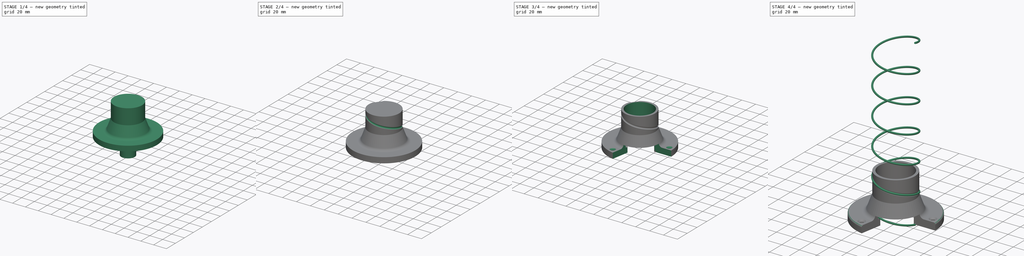
[diagram: build sequence overview — one tinted view per stage of 4, left to right]
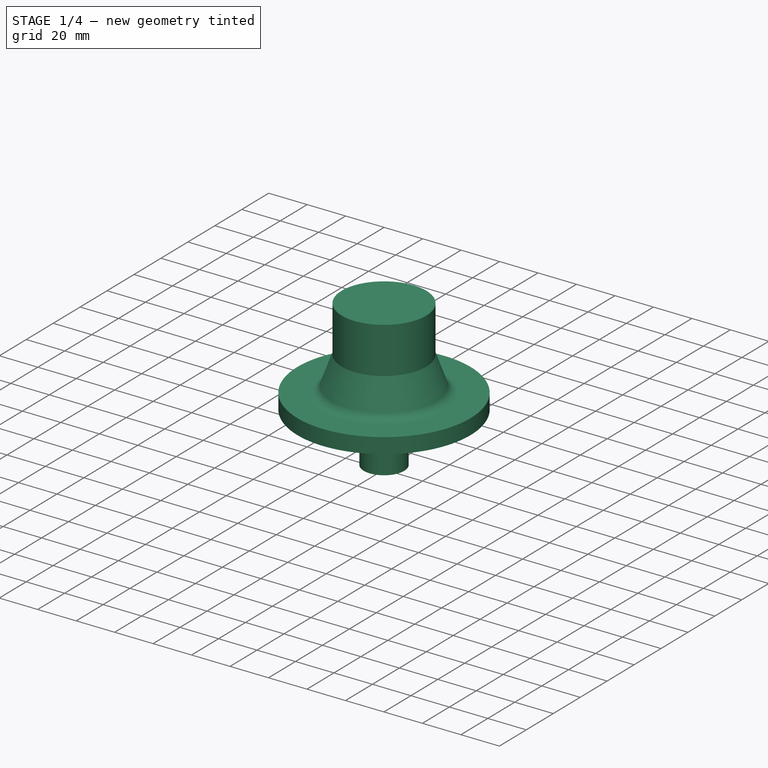
[diagram: stage 1 of 4 — iso view after this stage's code; geometry added in this stage tinted green]
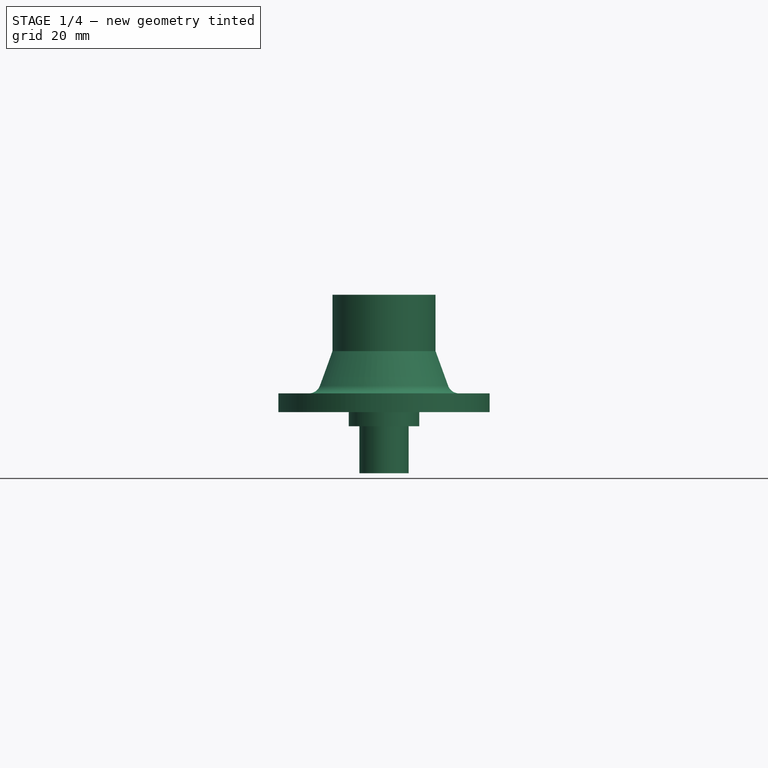
[diagram: stage 1 of 4 — front view after this stage's code; geometry added in this stage tinted green]
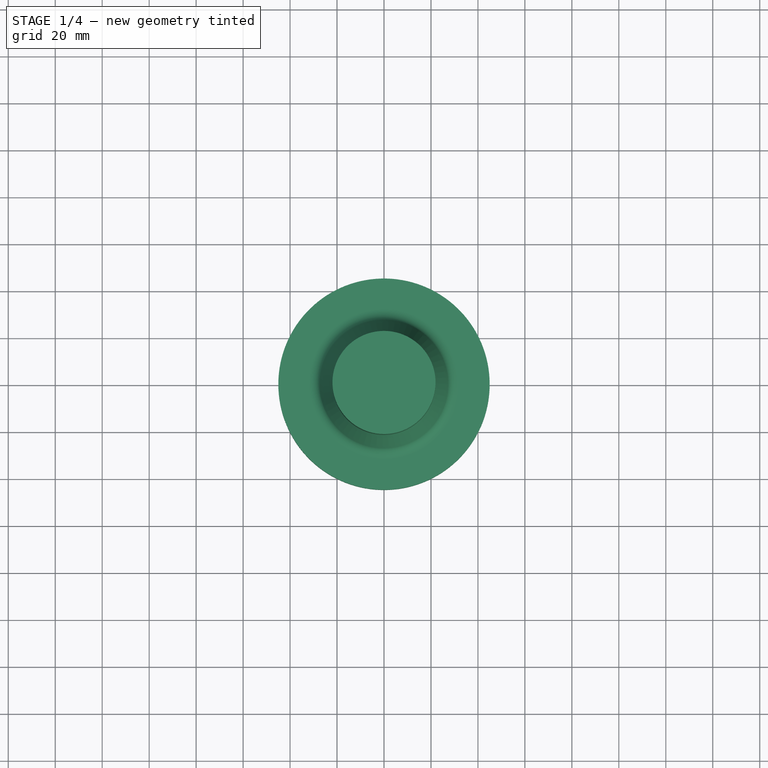
[diagram: stage 1 of 4 — top view after this stage's code; geometry added in this stage tinted green]
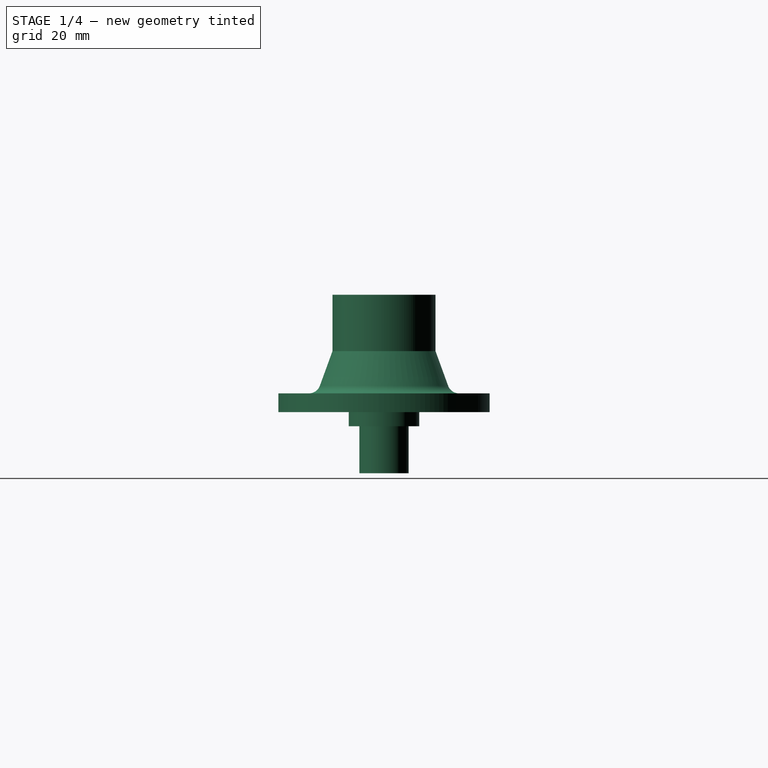
[diagram: stage 1 of 4 — right view after this stage's code; geometry added in this stage tinted green]
FCSTD DOCUMENT  (FreeCAD 0.18R16145 (Git))
Label: orange_top_ku_band_KU1201B_and_helix_bracket
License: All rights reserved
LicenseURL: http://en.wikipedia.org/wiki/All_rights_reserved
objects: Sketcher::SketchObject×7, PartDesign::Body×3, PartDesign::Revolution×2, PartDesign::ShapeBinder×2, PartDesign::SubtractivePipe×2, PartDesign::Pocket×2, PartDesign::Boolean×1, Part::Helix×1, PartDesign::FeatureBase×1, PartDesign::Hole×1, PartDesign::Fillet×1, App::Part×1
note: 30 computed .brp shape members not serialized (recipe doc carries the construction recipe); baked Part::Feature solids carry a one-line shape summary decoded from their .brp

FEATURE [Sketcher::SketchObject] Sketch
  MapMode = 5
  Placement = pos=(0,0,0) rot=(0.57735,0.57735,0.57735;2.0944rad)
  Support = -> [YZ_Plane001]
  sketch-geometry (10):
    g0: LineSegment StartX=0 StartY=-26 StartZ=0 EndX=10.5 EndY=-26 EndZ=0
    g1: LineSegment StartX=10.5 StartY=-26 StartZ=0 EndX=10.5 EndY=-6 EndZ=0
    g2: LineSegment StartX=10.5 StartY=-6 StartZ=0 EndX=15 EndY=-6 EndZ=0
    g3: LineSegment StartX=15 StartY=-6 StartZ=0 EndX=15 EndY=0 EndZ=0
    g4: LineSegment StartX=15 StartY=0 StartZ=0 EndX=20.5 EndY=0 EndZ=0
    g5: LineSegment StartX=20.5 StartY=0 StartZ=0 EndX=20.5 EndY=14 EndZ=0
    g6: LineSegment StartX=20.5 StartY=14 StartZ=0 EndX=18.5 EndY=14 EndZ=0
    g7: LineSegment StartX=18.5 StartY=14 StartZ=0 EndX=18.5 EndY=12 EndZ=0
    g8: LineSegment StartX=18.5 StartY=12 StartZ=0 EndX=0 EndY=12 EndZ=0
    g9: LineSegment StartX=0 StartY=12 StartZ=0 EndX=0 EndY=-26 EndZ=0
  constraints (30):
    c: PointOnObject(g0,g-2)
    c: Horizontal(g0)
    c: Coincident(g0,g1)
    c: Vertical(g1)
    c: Coincident(g1,g2)
    c: Horizontal(g2)
    c: Coincident(g2,g3)
    c: Vertical(g3)
    c: Coincident(g3,g4)
    c: Horizontal(g4)
    c: Coincident(g4,g5)
    c: Vertical(g5)
    c: Coincident(g5,g6)
    c: Horizontal(g6)
    c: Coincident(g6,g7)
    c: Vertical(g7)
    c: Coincident(g7,g8)
    c: PointOnObject(g9,g-2)
    c: Coincident(g9,g0)
    c: DistanceX(g0,g0) = 10.5
    c: DistanceX(g0,g2) = 15
    c: DistanceX(g0,g4) = 20.5
    c: DistanceY(g1,g1) = 20
    c: DistanceY(g5,g5) = 14
    c: DistanceY(g3,g3) = 6
    c: Horizontal(g8)
    c: DistanceX(g6,g6) = 2
    c: DistanceY(g7,g7) = 2
    c: Coincident(g9,g8)
    c: Horizontal(g3,g-1)
FEATURE [PartDesign::Revolution] Revolution
  Angle = 360
  Axis = (-2e-16,3e-16,1)
  Base = (0,0,0)
  Placement = pos=(0,0,0) rot=(0.57735,0.57735,0.57735;2.0944rad)
  Profile = -> Sketch
  ReferenceAxis = -> Sketch [V_Axis]
  Reversed = true
FEATURE [PartDesign::Body] Body
  Group = -> [Sketch,Revolution]
  Origin = -> Origin001
  Tip = -> Revolution
FEATURE [Sketcher::SketchObject] Sketch002
  MapMode = 5
  Placement = pos=(0,0,0) rot=(1,0,0;1.5708rad)
  Support = -> [XZ_Plane002]
  sketch-geometry (8):
    g0: LineSegment StartX=0 StartY=0 StartZ=0 EndX=45 EndY=0 EndZ=0
    g1: LineSegment StartX=21.95 StartY=50 StartZ=0 EndX=0 EndY=50 EndZ=0
    g2: LineSegment StartX=0 StartY=50 StartZ=0 EndX=0 EndY=0 EndZ=0
    g3: LineSegment StartX=21.95 StartY=50 StartZ=0 EndX=21.95 EndY=25.9931 EndZ=0
    g4: LineSegment StartX=45 StartY=0 StartZ=0 EndX=45 EndY=8 EndZ=0
    g5: LineSegment StartX=21.95 StartY=25.9931 StartZ=0 EndX=27.3015 EndY=11.2899 EndZ=0
    g6: LineSegment StartX=32 StartY=8 StartZ=0 EndX=45 EndY=8 EndZ=0
    g7: ArcOfCircle CenterX=32 CenterY=13 CenterZ=0 NormalX=0 NormalY=0 NormalZ=1 AngleXU=0 Radius=5 StartAngle=3.49066 EndAngle=4.71239
  constraints (22):
    c: Coincident(g1,g2)
    c: Coincident(g2,g0)
    c: Horizontal(g0)
    c: Horizontal(g1)
    c: Vertical(g2)
    c: Coincident(g0,g-1)
    c: DistanceX(g1,g1) = 21.95
    c: Coincident(g1,g3)
    c: Vertical(g3)
    c: DistanceX(g0,g0) = 45
    c: Coincident(g4,g0)
    c: Vertical(g4)
    c: Coincident(g3,g5)
    c: Coincident(g6,g4)
    c: Horizontal(g6)
    c: DistanceY(g4,g4) = 8
    c: Tangent(g6,g7) = -1.5708
    c: Tangent(g5,g7) = -1.5708
    c: DistanceX(g6,g6) = 13
    c: Radius(g7) = 5
    c: Angle(g5,g3) = 2.79253
    c: DistanceY(g2,g2) = 50
FEATURE [PartDesign::Revolution] Revolution002
  Angle = 360
  Axis = (0,2e-16,1)
  Base = (0,0,0)
  Placement = pos=(0,0,0) rot=(1,0,0;1.5708rad)
  Profile = -> Sketch002
  ReferenceAxis = -> Sketch002 [V_Axis]
  Reversed = true
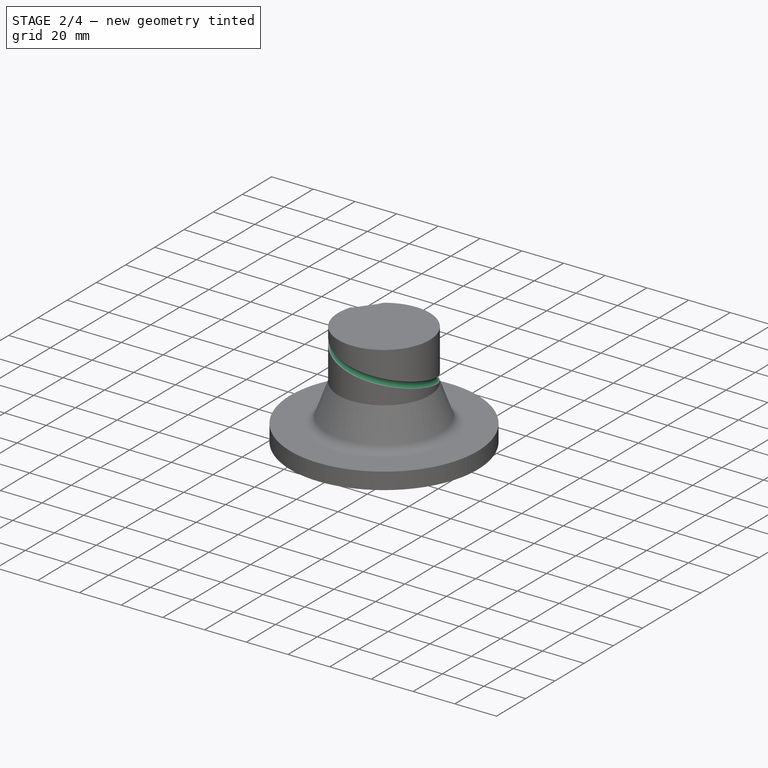
[diagram: stage 2 of 4 — iso view after this stage's code; geometry added in this stage tinted green]
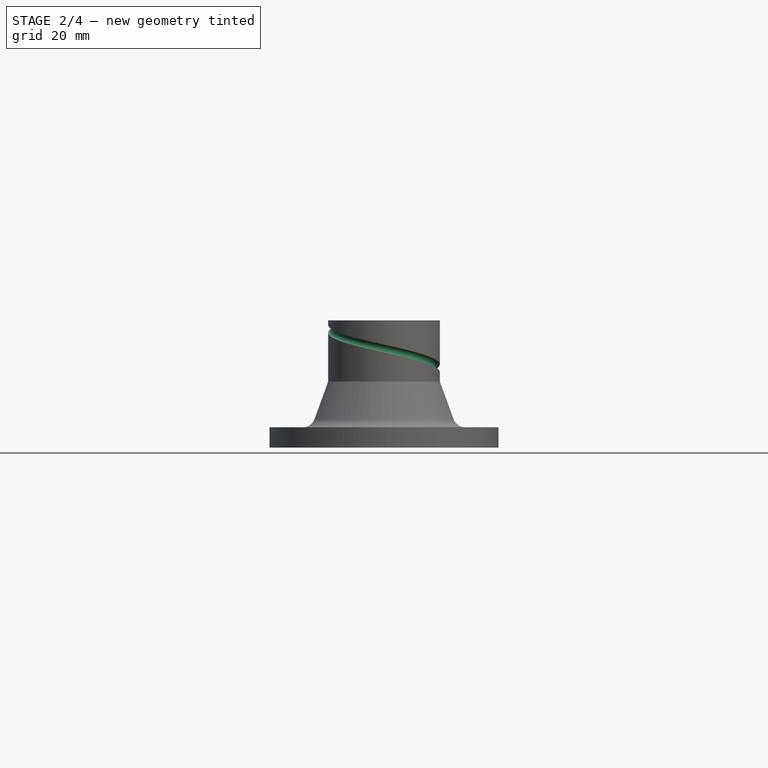
[diagram: stage 2 of 4 — front view after this stage's code; geometry added in this stage tinted green]
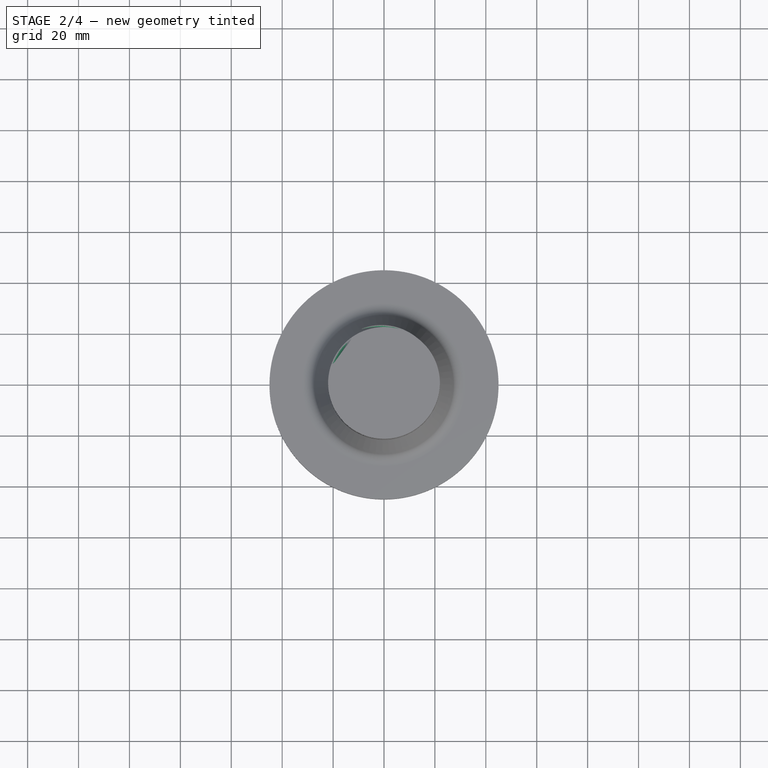
[diagram: stage 2 of 4 — top view after this stage's code; geometry added in this stage tinted green]
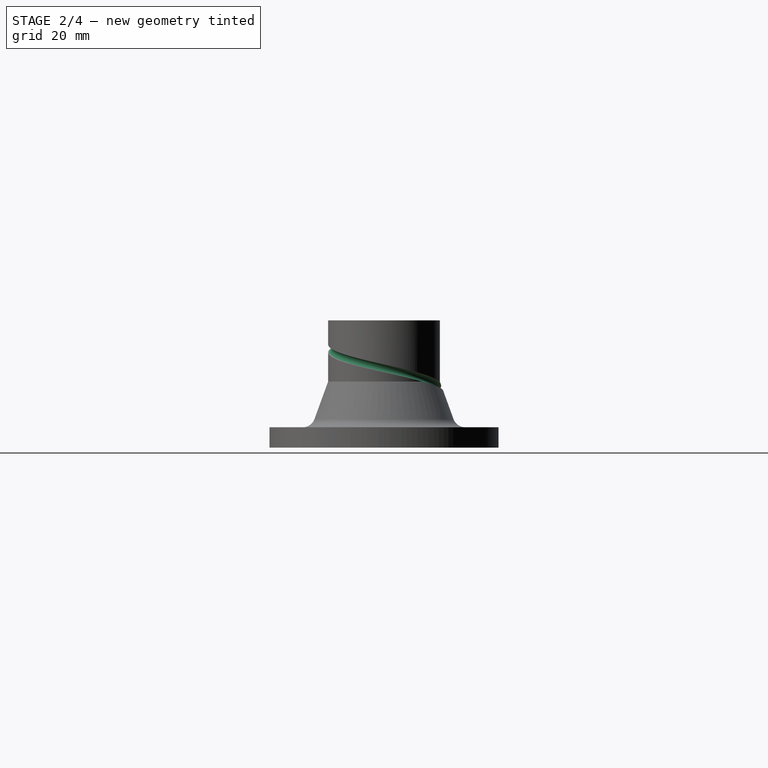
[diagram: stage 2 of 4 — right view after this stage's code; geometry added in this stage tinted green]
FEATURE [PartDesign::Boolean] Boolean
  BaseFeature = -> Revolution002
  Group = -> [Body]
  Type = 1
FEATURE [Part::Helix] Helix001
  Angle = 0
  AttacherType = Attacher::AttachEngine3D
  Height = 187.19
  LocalCoord = 1
  Pitch = 31.2
  Radius = 22
  Style = 1
FEATURE [PartDesign::ShapeBinder] ShapeBinder
  Support = -> [Helix001]
  TraceSupport = false
FEATURE [Sketcher::SketchObject] Sketch003
  ExternalGeometry = -> [ShapeBinder]
  MapMode = 5
  Placement = pos=(0,0,0) rot=(1,0,0;1.5708rad)
  Support = -> [XZ_Plane002]
  sketch-geometry (1):
    g0: Circle CenterX=22 CenterY=0 CenterZ=0 NormalX=0 NormalY=0 NormalZ=1 AngleXU=0 Radius=1.5
  constraints (2):
    c: Coincident(g0,g-3)
    c: Diameter(g0) = 3
FEATURE [PartDesign::SubtractivePipe] SubtractivePipe
  AuxilleryCurvelinear = true
  AuxillerySpineTangent = false
  BaseFeature = -> Boolean
  Binormal = (0,0,0)
  Mode = 0
  Profile = -> Sketch003
  Spine = -> ShapeBinder [Edge1,Edge2,Edge3,Edge4,Edge5,Edge6]
  SpineTangent = false
  Transformation = 0
  Transition = 0
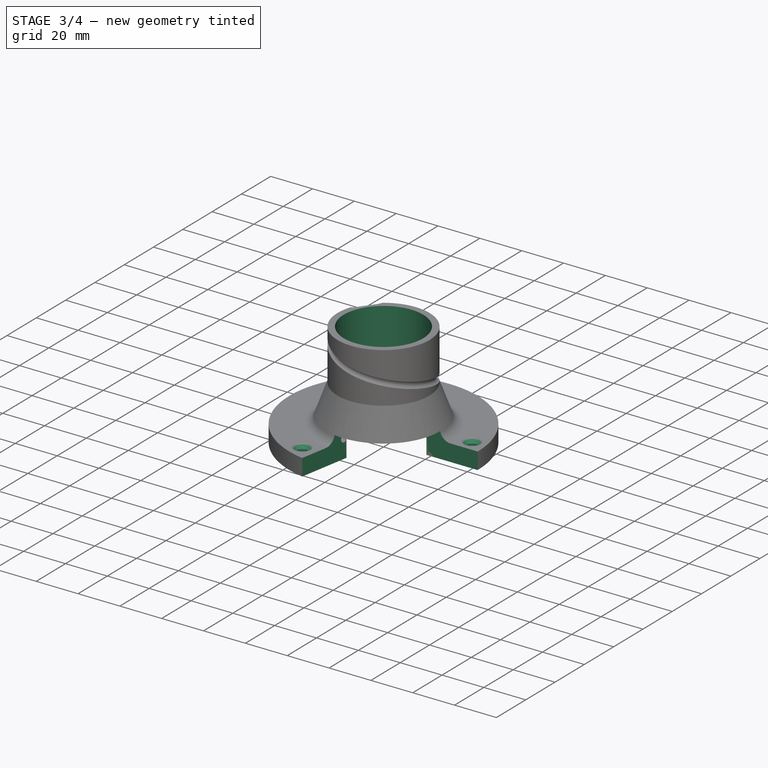
[diagram: stage 3 of 4 — iso view after this stage's code; geometry added in this stage tinted green]
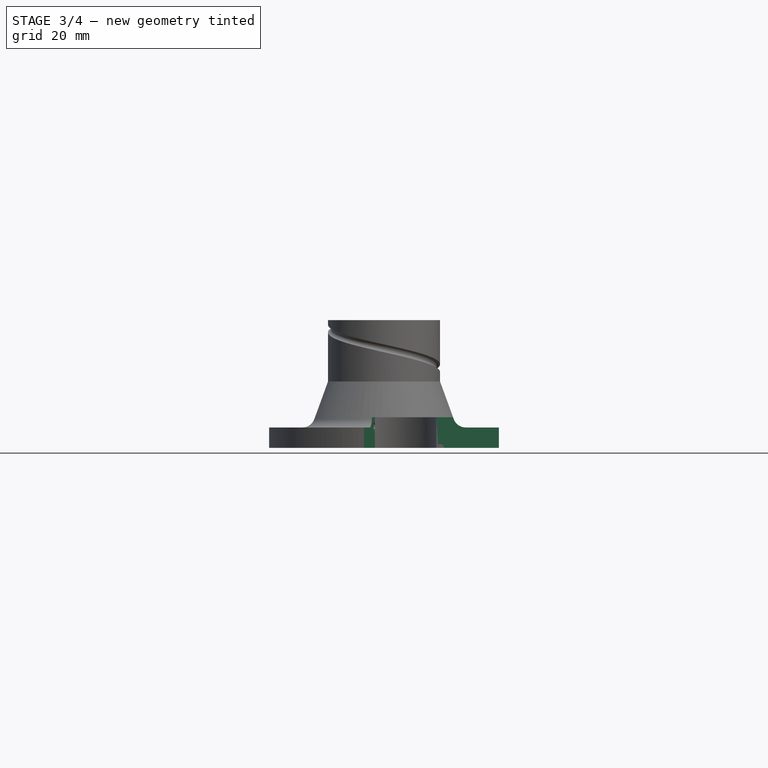
[diagram: stage 3 of 4 — front view after this stage's code; geometry added in this stage tinted green]
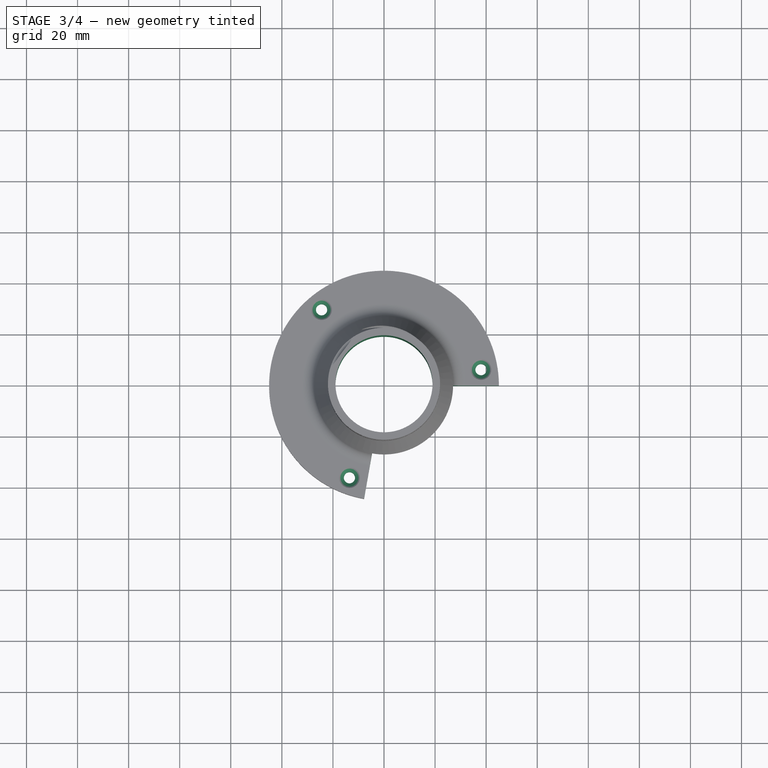
[diagram: stage 3 of 4 — top view after this stage's code; geometry added in this stage tinted green]
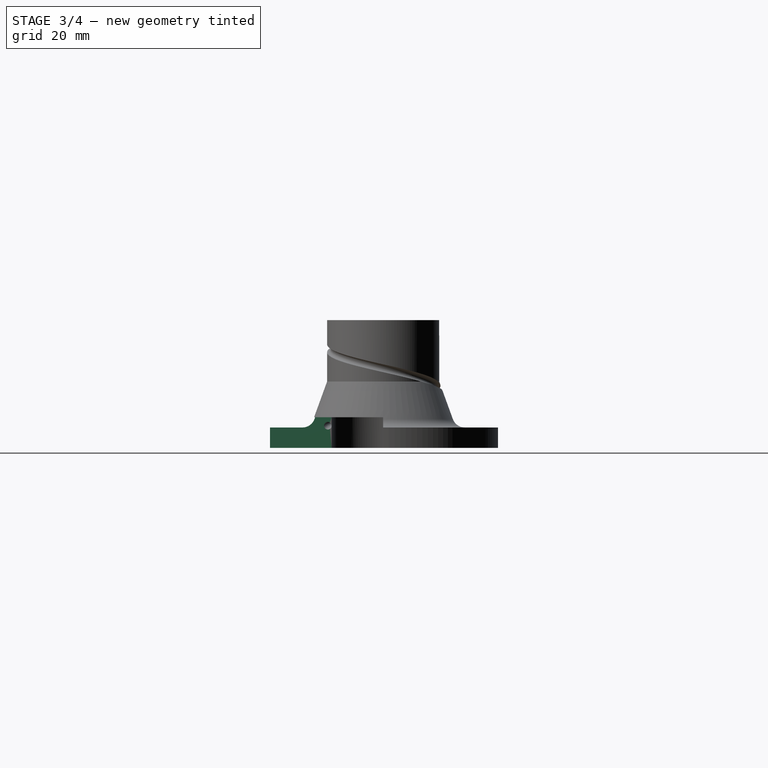
[diagram: stage 3 of 4 — right view after this stage's code; geometry added in this stage tinted green]
FEATURE [PartDesign::Body] Body002
  BaseFeature = -> Helix001
  Group = -> [BaseFeature,ShapeBinder001,Sketch004,SubtractivePipe001]
  Origin = -> Origin003
  Tip = -> SubtractivePipe001
FEATURE [Sketcher::SketchObject] Sketch005
  MapMode = 5
  Support = -> [XY_Plane002]
  sketch-geometry (1):
    g0: Circle CenterX=0 CenterY=0 CenterZ=0 NormalX=0 NormalY=0 NormalZ=1 AngleXU=0 Radius=19
  constraints (2):
    c: Coincident(g0,g-1)
    c: Diameter(g0) = 38
FEATURE [PartDesign::Pocket] Pocket
  BaseFeature = -> SubtractivePipe
  Length = 5
  Length2 = 100
  Profile = -> Sketch005
  Reversed = true
  Type = 1
FEATURE [Sketcher::SketchObject] Sketch006
  ExternalGeometry = -> [Pocket]
  MapMode = 5
  Support = -> [XY_Plane002]
  sketch-geometry (4):
    g0: ArcOfCircle CenterX=0 CenterY=0 CenterZ=0 NormalX=0 NormalY=0 NormalZ=1 AngleXU=0 Radius=50 StartAngle=4.53786 EndAngle=6.28319
    g1: LineSegment StartX=-8.68241 StartY=-49.2404 StartZ=0 EndX=0 EndY=0 EndZ=0
    g2: LineSegment StartX=50 StartY=-1.22e-14 StartZ=0 EndX=0 EndY=0 EndZ=0
    g3: GeomPoint X=45 Y=0 Z=0
  constraints (10):
    c: Coincident(g0,g-1)
    c: Coincident(g1,g0)
    c: Coincident(g1,g0)
    c: Coincident(g2,g0)
    c: Coincident(g2,g0)
    c: PointOnObject(g0,g-1)
    c: Angle(g1,g2) = 1.74533
    c: PointOnObject(g3,g2)
    c: DistanceX(g3,g0) = 5
    c: PointOnObject(g3,g-3)
FEATURE [PartDesign::Pocket] Pocket001
  BaseFeature = -> Pocket
  Length = 12
  Length2 = 100
  Profile = -> Sketch006
  Reversed = true
  Type = 0
FEATURE [Sketcher::SketchObject] Sketch007
  ExternalGeometry = -> [Pocket001]
  MapMode = 5
  Placement = pos=(0,5.3e-15,8) rot=(0,0,1;0rad)
  Support = -> [Pocket001]
  sketch-geometry (8):
    g0: Circle CenterX=37.9809 CenterY=6.30061 CenterZ=0 NormalX=0 NormalY=0 NormalZ=1 AngleXU=0 Radius=3.24681
    g1: Circle [constr] CenterX=0 CenterY=0 CenterZ=0 NormalX=0 NormalY=0 NormalZ=1 AngleXU=0 Radius=38.5
    g2: GeomPoint X=38.5 Y=9.4e-15 Z=0
    g3: Circle CenterX=-24.447 CenterY=29.7422 CenterZ=0 NormalX=0 NormalY=0 NormalZ=1 AngleXU=0 Radius=2.10623
    g4: Circle CenterX=-13.534 CenterY=-36.0428 CenterZ=0 NormalX=0 NormalY=0 NormalZ=1 AngleXU=0 Radius=2.63706
    g5: Circle [constr] CenterX=37.9809 CenterY=6.30061 CenterZ=0 NormalX=0 NormalY=0 NormalZ=1 AngleXU=0 Radius=66.684
    g6: Circle [constr] CenterX=-24.447 CenterY=29.7422 CenterZ=0 NormalX=0 NormalY=0 NormalZ=1 AngleXU=0 Radius=66.684
    g7: LineSegment [constr] StartX=0 StartY=0 StartZ=0 EndX=37.9809 EndY=6.30061 EndZ=0
  constraints (15):
    c: Coincident(g1,g-1)
    c: PointOnObject(g2,g1)
    c: Symmetric(g-4,g-3,g2)
    c: PointOnObject(g0,g1)
    c: PointOnObject(g3,g1)
    c: PointOnObject(g4,g1)
    c: Coincident(g5,g0)
    c: PointOnObject(g3,g5)
    c: Coincident(g6,g3)
    c: PointOnObject(g4,g6)
    c: PointOnObject(g0,g6)
    c: PointOnObject(g4,g5)
    c: Coincident(g7,g-1)
    c: Coincident(g7,g0)
    c: Distance(g7) = 38.5
FEATURE [PartDesign::Hole] Hole
  BaseFeature = -> Pocket001
  Depth = 25
  DepthType = 0
  Diameter = 4.4
  DrillPoint = 1
  DrillPointAngle = 118
  HoleCutCountersinkAngle = 90
  HoleCutDepth = 0
  HoleCutDiameter = 8
  HoleCutType = 2
  ModelActualThread = false
  Profile = -> Sketch007
  Tapered = false
  TaperedAngle = 90
  ThreadAngle = 0
  ThreadClass = 0
  ThreadCutOffInner = 0
  ThreadCutOffOuter = 0
  ThreadDirection = 0
  ThreadFit = 0
  ThreadPitch = 0
  ThreadSize = 5
  ThreadType = 1
  Threaded = false
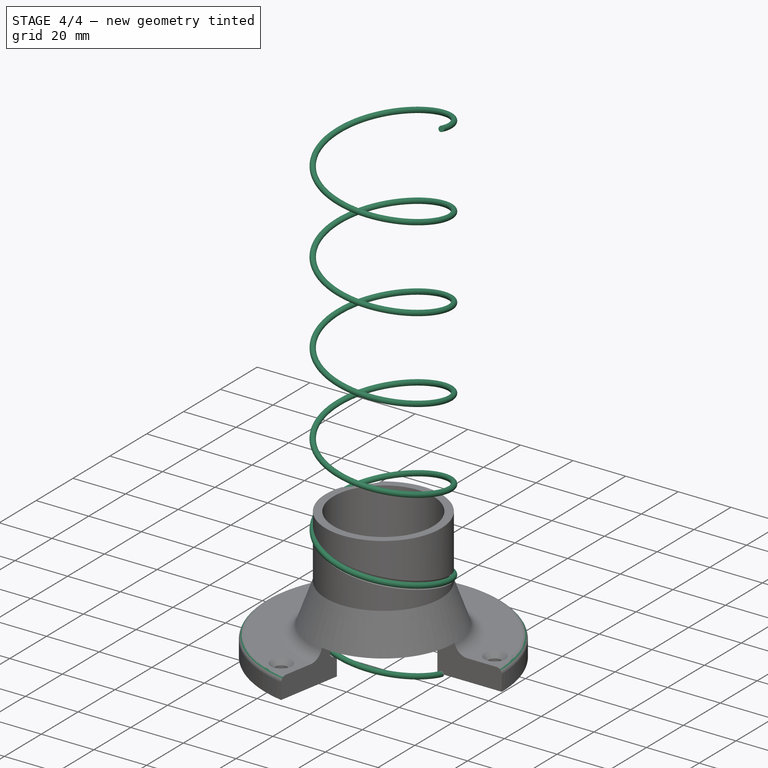
[diagram: stage 4 of 4 — iso view after this stage's code; geometry added in this stage tinted green]
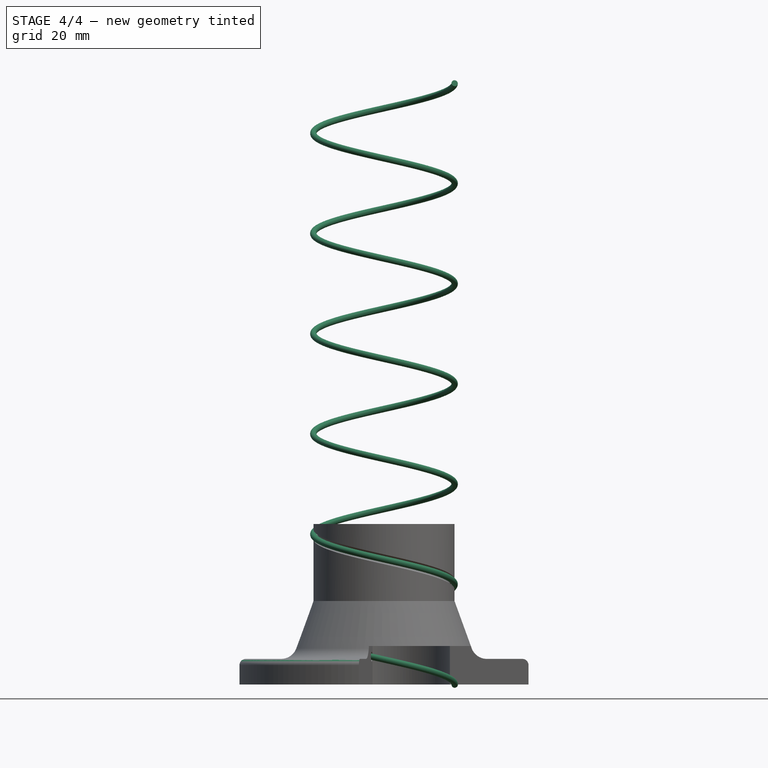
[diagram: stage 4 of 4 — front view after this stage's code; geometry added in this stage tinted green]
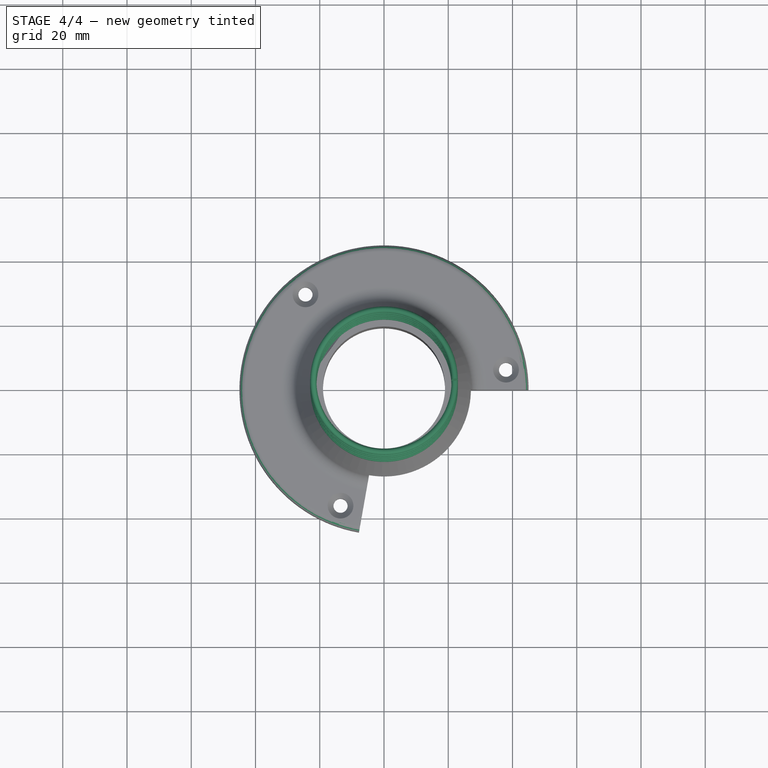
[diagram: stage 4 of 4 — top view after this stage's code; geometry added in this stage tinted green]
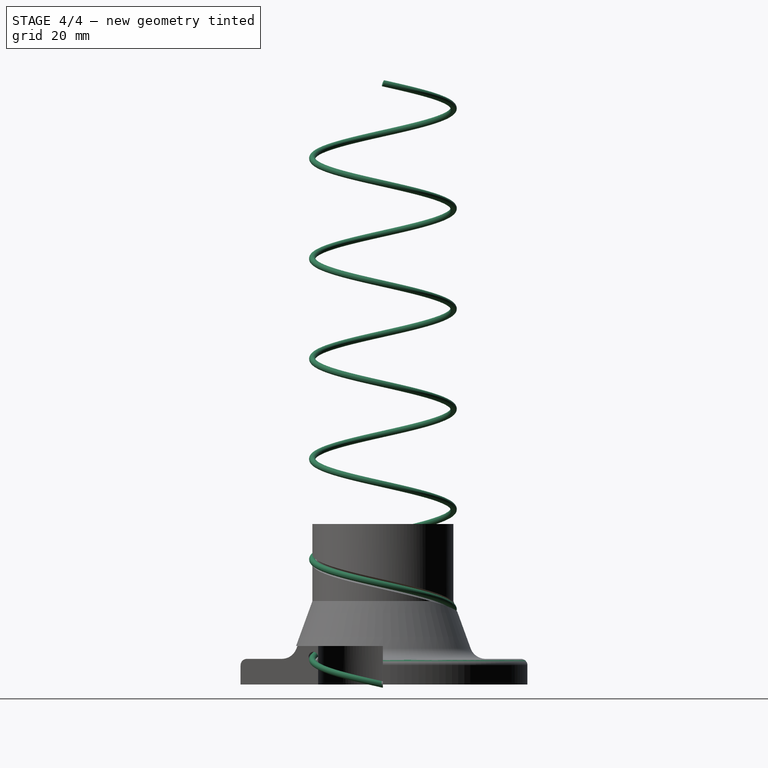
[diagram: stage 4 of 4 — right view after this stage's code; geometry added in this stage tinted green]
FEATURE [PartDesign::FeatureBase] BaseFeature
  BaseFeature = -> Helix001
FEATURE [PartDesign::ShapeBinder] ShapeBinder001
  Support = -> [BaseFeature]
  TraceSupport = false
FEATURE [Sketcher::SketchObject] Sketch004
  ExternalGeometry = -> [BaseFeature]
  MapMode = 5
  Placement = pos=(0,0,0) rot=(1,0,0;1.5708rad)
  Support = -> [XZ_Plane003]
  sketch-geometry (1):
    g0: Circle CenterX=22 CenterY=0 CenterZ=0 NormalX=0 NormalY=0 NormalZ=1 AngleXU=0 Radius=1
  constraints (2):
    c: Coincident(g0,g-3)
    c: Diameter(g0) = 2
FEATURE [PartDesign::SubtractivePipe] SubtractivePipe001
  AuxilleryCurvelinear = true
  AuxillerySpineTangent = false
  BaseFeature = -> BaseFeature
  Binormal = (0,0,0)
  Mode = 0
  Profile = -> Sketch004
  Spine = -> BaseFeature [Edge1,Edge2,Edge3,Edge4,Edge5,Edge6]
  SpineTangent = false
  Transformation = 0
  Transition = 0
FEATURE [PartDesign::Fillet] Fillet
  Base = -> Hole [Edge54]
  BaseFeature = -> Hole
  Radius = 2
FEATURE [PartDesign::Body] Body001
  Group = -> [Sketch002,Revolution002,Boolean,ShapeBinder,Sketch003,SubtractivePipe,Sketch005,Pocket,Sketch006,Pocket001,Sketch007,Hole,Fillet]
  Origin = -> Origin002
  Tip = -> Fillet
FEATURE [App::Part] Part
  Group = -> [Body001,Helix001,Body002]
  Origin = -> Origin
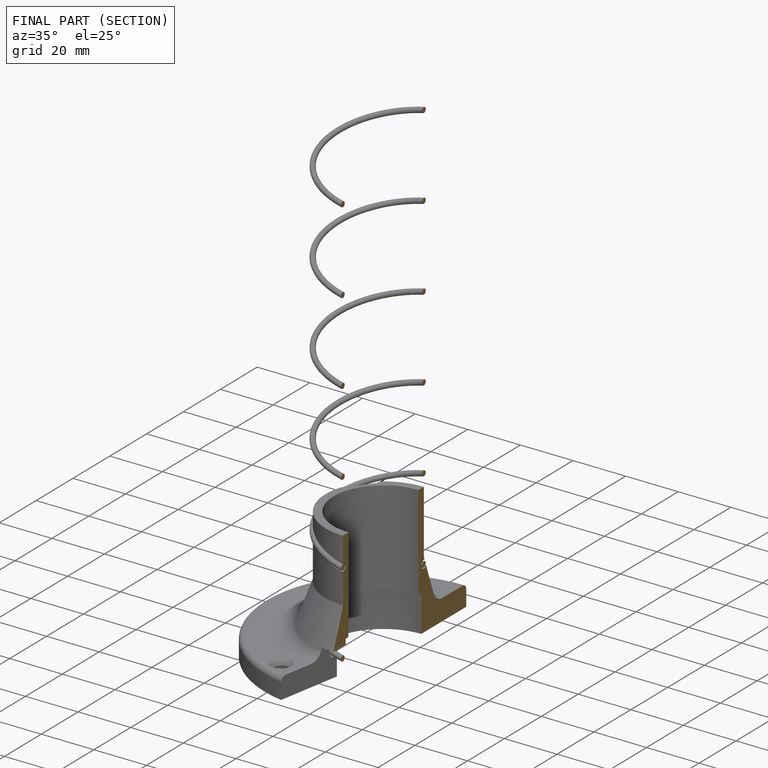
[diagram: finished part — half-section view (interior)]
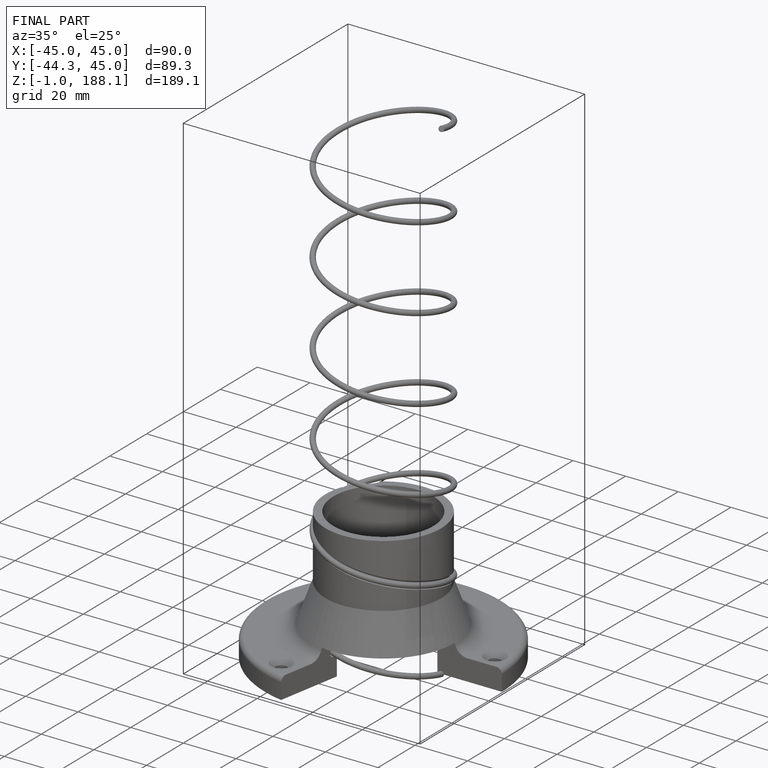
[diagram: finished part — iso view with bounding-box wireframe]
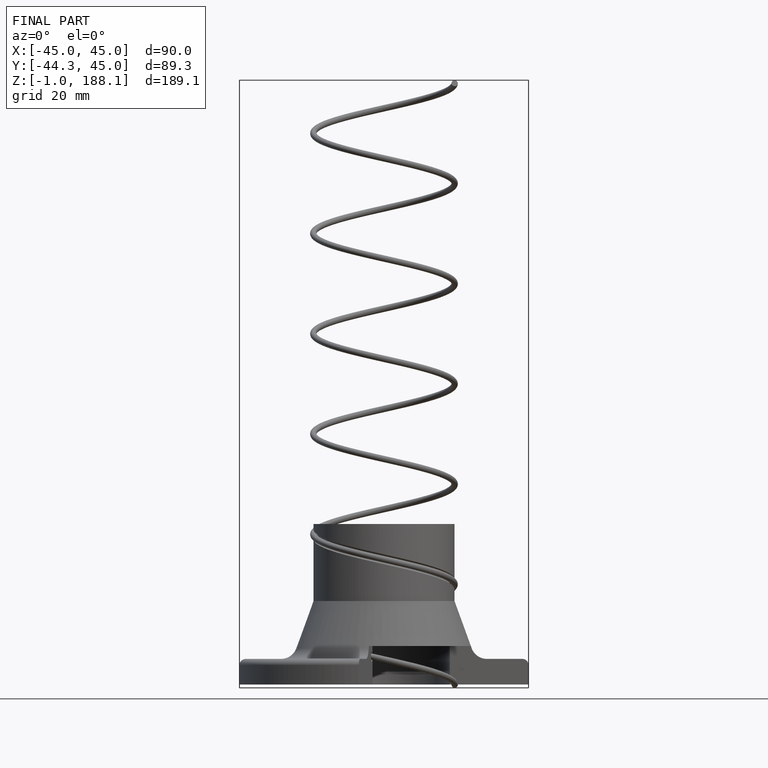
[diagram: finished part — front view with bounding-box wireframe]
